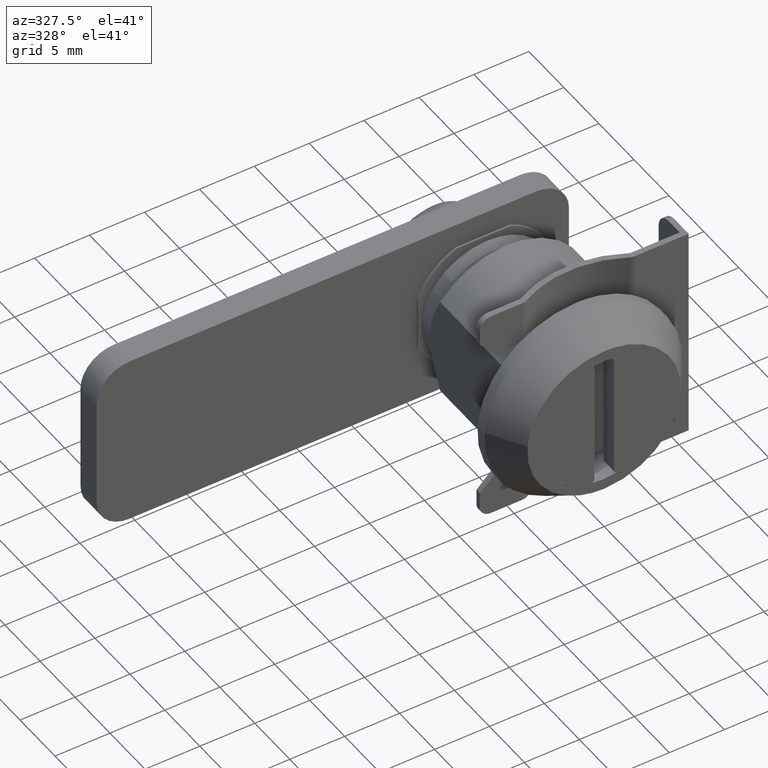
[diagram: clean part render]
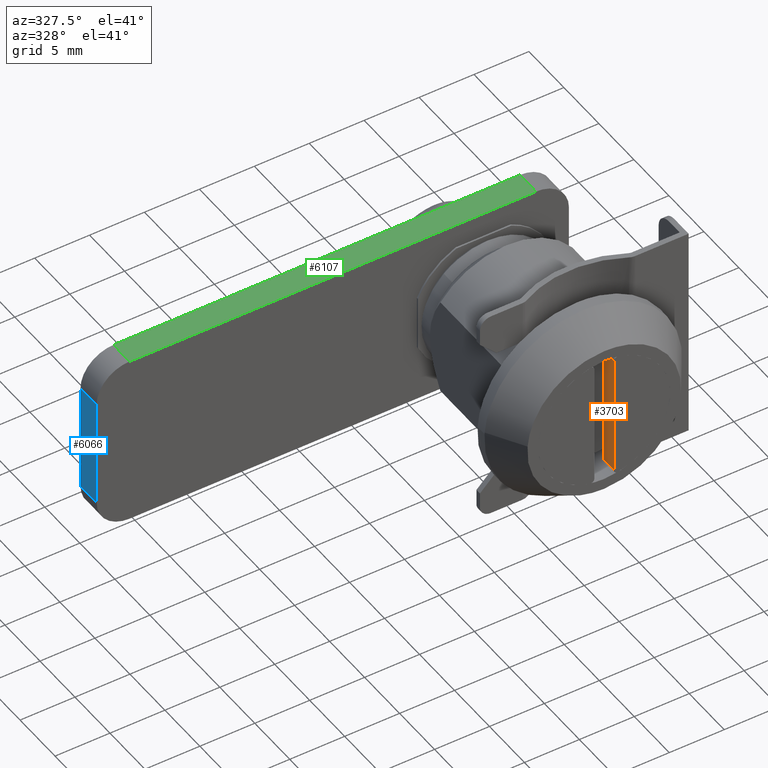
[diagram: same view with three faces highlighted in distinct colors, each labeled with its STEP entity id]
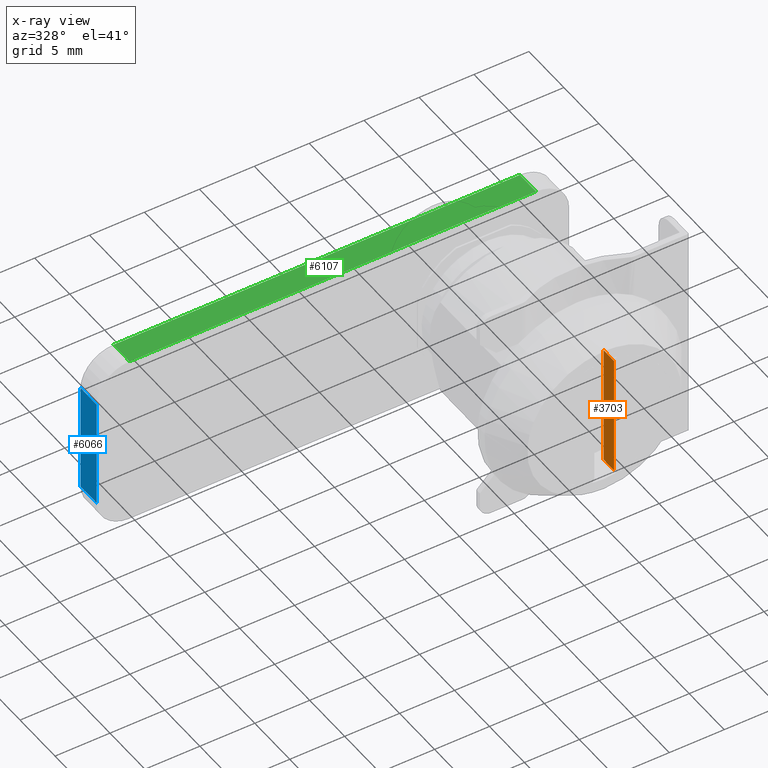
[diagram: x-ray of the same camera — body ghosted, the three highlighted faces saturated]
A machine part, auxiliary view with three faces highlighted in distinct colors.
The next image is the same camera in x-ray (body ghosted, the three faces saturated) — at least one of them is partly hidden behind the body in this view.
Their STEP definitions:

[orange] entity #3703 — the highlighted face is a freeform B-spline surface patch.
#3225=CARTESIAN_POINT('',(0.899999999999807,1.500000000000000,4.409081537009760));
#3226=VERTEX_POINT('',#3225);
#3240=CARTESIAN_POINT('',(0.899999999999807,1.500000000000000,-4.409081537009760));
#3241=VERTEX_POINT('',#3240);
#3451=CARTESIAN_POINT('',(0.899999999999807,1.500000000000000,5.572252686302059));
#3452=VERTEX_POINT('',#3451);
#3470=CARTESIAN_POINT('',(0.899999999999807,0.0,5.572252686302059));
#3471=VERTEX_POINT('',#3470);
#3472=CARTESIAN_POINT('',(0.899999999999807,0.0,5.572252686302059));
#3473=CARTESIAN_POINT('',(0.899999999999807,1.500000000000000,5.572252686302059));
#3474=QUASI_UNIFORM_CURVE('',1,(#3472,#3473),.UNSPECIFIED.,.F.,.U.);
#3475=EDGE_CURVE('',#3471,#3452,#3474,.T.);
#3518=CARTESIAN_POINT('',(0.899999999999806,1.500000000000000,-5.572252686302059));
#3519=VERTEX_POINT('',#3518);
#3542=CARTESIAN_POINT('',(0.899999999999806,0.0,-5.572252686302059));
#3543=VERTEX_POINT('',#3542);
#3559=CARTESIAN_POINT('',(0.899999999999806,1.500000000000000,-5.572252686302059));
#3560=CARTESIAN_POINT('',(0.899999999999806,0.0,-5.572252686302059));
#3561=QUASI_UNIFORM_CURVE('',1,(#3559,#3560),.UNSPECIFIED.,.F.,.U.);
#3562=EDGE_CURVE('',#3519,#3543,#3561,.T.);
#3674=CARTESIAN_POINT('',(0.899999999999806,-0.074924997092709,6.128920812680065));
#3675=CARTESIAN_POINT('',(0.899999999999806,-0.074924997092709,-6.128921011959350));
#3676=CARTESIAN_POINT('',(0.899999999999806,1.574925037325844,6.128920812680065));
#3677=CARTESIAN_POINT('',(0.899999999999806,1.574925037325844,-6.128921011959350));
#3678=B_SPLINE_SURFACE_WITH_KNOTS('',1,1,((#3674,#3676),(#3675,#3677)),.UNSPECIFIED.,.F.,.F.,.U.,(2,2),(2,2),(0.0,12.257841824639410),(0.041708334948495,0.958291687403247),.UNSPECIFIED.);
#3679=CARTESIAN_POINT('',(0.899999999999806,1.500000000000000,-5.572252686302059));
#3680=CARTESIAN_POINT('',(0.899999999999807,1.500000000000000,-4.409081537009760));
#3681=QUASI_UNIFORM_CURVE('',1,(#3679,#3680),.UNSPECIFIED.,.F.,.U.);
#3682=EDGE_CURVE('',#3519,#3241,#3681,.T.);
#3683=ORIENTED_EDGE('',*,*,#3682,.F.);
#3684=ORIENTED_EDGE('',*,*,#3562,.T.);
#3685=CARTESIAN_POINT('',(0.899999999999806,0.0,-5.572252686302059));
#3686=CARTESIAN_POINT('',(0.899999999999807,0.0,5.572252686302059));
#3687=QUASI_UNIFORM_CURVE('',1,(#3685,#3686),.UNSPECIFIED.,.F.,.U.);
#3688=EDGE_CURVE('',#3543,#3471,#3687,.T.);
#3689=ORIENTED_EDGE('',*,*,#3688,.T.);
#3690=ORIENTED_EDGE('',*,*,#3475,.T.);
#3691=CARTESIAN_POINT('',(0.899999999999807,1.500000000000000,4.409081537009760));
#3692=CARTESIAN_POINT('',(0.899999999999807,1.500000000000000,5.572252686302059));
#3693=QUASI_UNIFORM_CURVE('',1,(#3691,#3692),.UNSPECIFIED.,.F.,.U.);
#3694=EDGE_CURVE('',#3226,#3452,#3693,.T.);
#3695=ORIENTED_EDGE('',*,*,#3694,.F.);
#3696=CARTESIAN_POINT('',(0.899999999999807,1.500000000000000,-4.409081537009760));
#3697=CARTESIAN_POINT('',(0.899999999999807,1.500000000000000,4.409081537009760));
#3698=QUASI_UNIFORM_CURVE('',1,(#3696,#3697),.UNSPECIFIED.,.F.,.U.);
#3699=EDGE_CURVE('',#3241,#3226,#3698,.T.);
#3700=ORIENTED_EDGE('',*,*,#3699,.F.);
#3701=EDGE_LOOP('',(#3683,#3684,#3689,#3690,#3695,#3700));
#3702=FACE_OUTER_BOUND('',#3701,.T.);
#3703=ADVANCED_FACE('',(#3702),#3678,.F.);

[blue] entity #6066 — the highlighted face is a freeform B-spline surface patch.
#5808=CARTESIAN_POINT('',(-35.0,17.600000000000001,5.000001151917320));
#5809=VERTEX_POINT('',#5808);
#5823=CARTESIAN_POINT('',(-35.0,17.600000000000001,-5.0));
#5824=VERTEX_POINT('',#5823);
#5825=CARTESIAN_POINT('',(-35.0,17.600000000000001,5.000001151917320));
#5826=CARTESIAN_POINT('',(-35.0,17.600000000000001,-5.0));
#5827=QUASI_UNIFORM_CURVE('',1,(#5825,#5826),.UNSPECIFIED.,.F.,.U.);
#5828=EDGE_CURVE('',#5809,#5824,#5827,.T.);
#5890=CARTESIAN_POINT('',(-35.0,19.899999999999999,-5.0));
#5891=VERTEX_POINT('',#5890);
#5905=CARTESIAN_POINT('',(-35.0,19.899999999999999,5.000001151917320));
#5906=VERTEX_POINT('',#5905);
#5907=CARTESIAN_POINT('',(-35.0,19.899999999999999,5.000001151917320));
#5908=CARTESIAN_POINT('',(-35.0,19.899999999999999,-5.0));
#5909=QUASI_UNIFORM_CURVE('',1,(#5907,#5908),.UNSPECIFIED.,.F.,.U.);
#5910=EDGE_CURVE('',#5906,#5891,#5909,.T.);
#6037=CARTESIAN_POINT('',(-35.0,19.899999999999999,-5.0));
#6038=CARTESIAN_POINT('',(-35.0,17.600000000000001,-5.0));
#6039=QUASI_UNIFORM_CURVE('',1,(#6037,#6038),.UNSPECIFIED.,.F.,.U.);
#6040=EDGE_CURVE('',#5891,#5824,#6039,.T.);
#6051=CARTESIAN_POINT('',(-35.0,17.485115417743071,-5.499500002429299));
#6052=CARTESIAN_POINT('',(-35.0,17.485115417743071,5.499500707311733));
#6053=CARTESIAN_POINT('',(-35.0,20.014884520566131,-5.499500002429299));
#6054=CARTESIAN_POINT('',(-35.0,20.014884520566131,5.499500707311733));
#6055=B_SPLINE_SURFACE_WITH_KNOTS('',1,1,((#6051,#6053),(#6052,#6054)),.UNSPECIFIED.,.F.,.F.,.U.,(2,2),(2,2),(0.0,10.999000709741029),(0.0,2.529769102823057),.UNSPECIFIED.);
#6056=ORIENTED_EDGE('',*,*,#5828,.F.);
#6057=CARTESIAN_POINT('',(-35.0,19.899999999999999,5.000001151917320));
#6058=CARTESIAN_POINT('',(-35.0,17.600000000000001,5.000001151917320));
#6059=QUASI_UNIFORM_CURVE('',1,(#6057,#6058),.UNSPECIFIED.,.F.,.U.);
#6060=EDGE_CURVE('',#5906,#5809,#6059,.T.);
#6061=ORIENTED_EDGE('',*,*,#6060,.F.);
#6062=ORIENTED_EDGE('',*,*,#5910,.T.);
#6063=ORIENTED_EDGE('',*,*,#6040,.T.);
#6064=EDGE_LOOP('',(#6056,#6061,#6062,#6063));
#6065=FACE_OUTER_BOUND('',#6064,.T.);
#6066=ADVANCED_FACE('',(#6065),#6055,.T.);

[green] entity #6107 — the highlighted face is a freeform B-spline surface patch.
#5786=CARTESIAN_POINT('',(5.0,17.600000000000001,8.0));
#5787=VERTEX_POINT('',#5786);
#5801=CARTESIAN_POINT('',(-32.0,17.600000000000001,8.0));
#5802=VERTEX_POINT('',#5801);
#5803=CARTESIAN_POINT('',(5.0,17.600000000000001,8.0));
#5804=CARTESIAN_POINT('',(-32.0,17.600000000000001,8.0));
#5805=QUASI_UNIFORM_CURVE('',1,(#5803,#5804),.UNSPECIFIED.,.F.,.U.);
#5806=EDGE_CURVE('',#5787,#5802,#5805,.T.);
#5912=CARTESIAN_POINT('',(-32.0,19.899999999999999,8.0));
#5913=VERTEX_POINT('',#5912);
#5927=CARTESIAN_POINT('',(5.0,19.899999999999999,8.0));
#5928=VERTEX_POINT('',#5927);
#5929=CARTESIAN_POINT('',(5.0,19.899999999999999,8.0));
#5930=CARTESIAN_POINT('',(-32.0,19.899999999999999,8.0));
#5931=QUASI_UNIFORM_CURVE('',1,(#5929,#5930),.UNSPECIFIED.,.F.,.U.);
#5932=EDGE_CURVE('',#5928,#5913,#5931,.T.);
#6082=CARTESIAN_POINT('',(-32.0,19.899999999999999,8.0));
#6083=CARTESIAN_POINT('',(-32.0,17.600000000000001,8.0));
#6084=QUASI_UNIFORM_CURVE('',1,(#6082,#6083),.UNSPECIFIED.,.F.,.U.);
#6085=EDGE_CURVE('',#5913,#5802,#6084,.T.);
#6092=CARTESIAN_POINT('',(-33.848149928286823,17.485115417743071,8.0));
#6093=CARTESIAN_POINT('',(6.848150920704156,17.485115417743071,8.0));
#6094=CARTESIAN_POINT('',(-33.848149928286823,20.014884520566131,8.0));
#6095=CARTESIAN_POINT('',(6.848150920704156,20.014884520566131,8.0));
#6096=B_SPLINE_SURFACE_WITH_KNOTS('',1,1,((#6092,#6094),(#6093,#6095)),.UNSPECIFIED.,.F.,.F.,.U.,(2,2),(2,2),(0.0,40.696300848990980),(0.0,2.529769102823057),.UNSPECIFIED.);
#6097=ORIENTED_EDGE('',*,*,#5806,.F.);
#6098=CARTESIAN_POINT('',(5.0,19.899999999999999,8.0));
#6099=CARTESIAN_POINT('',(5.0,17.600000000000001,8.0));
#6100=QUASI_UNIFORM_CURVE('',1,(#6098,#6099),.UNSPECIFIED.,.F.,.U.);
#6101=EDGE_CURVE('',#5928,#5787,#6100,.T.);
#6102=ORIENTED_EDGE('',*,*,#6101,.F.);
#6103=ORIENTED_EDGE('',*,*,#5932,.T.);
#6104=ORIENTED_EDGE('',*,*,#6085,.T.);
#6105=EDGE_LOOP('',(#6097,#6102,#6103,#6104));
#6106=FACE_OUTER_BOUND('',#6105,.T.);
#6107=ADVANCED_FACE('',(#6106),#6096,.T.);